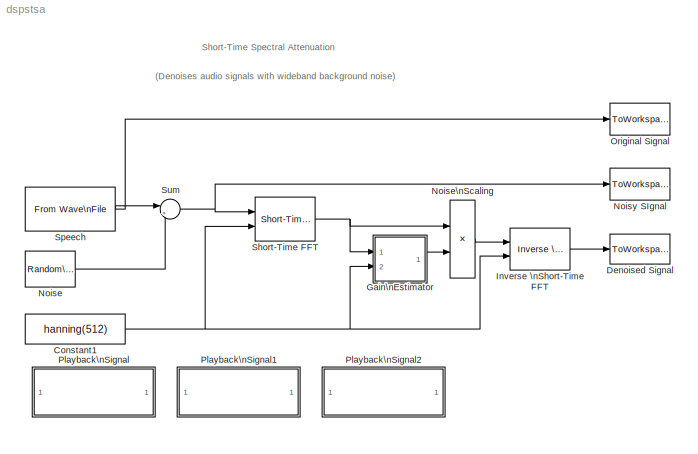
MODEL dspstsa
KIND model
BLOCK [Constant] Constant1
  Value = hanning(512)
BLOCK [ToWorkspace] Denoised Signal
  MaxDataPoints = inf
  SampleTime = -1
  SaveFormat = Array
  VariableName = outSig
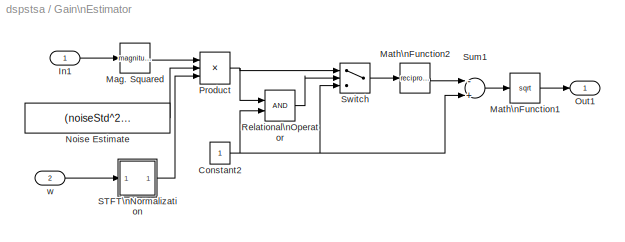
BLOCK [SubSystem] Gain\nEstimator
  MaskCallbackString = ||
  MaskDisplay = disp(sprintf('Gain\\n Estimator'))
  MaskEnableString = on,on,on
  MaskIconFrame = on
  MaskIconOpaque = on
  MaskIconRotate = none
  MaskIconUnits = autoscale
  MaskPromptString = Noise Standard Deviation:|Decimation:|Weighting (alpha):
  MaskStyleString = edit,edit,edit
  MaskTabNameString = ,,
  MaskToolTipString = on,on,on
  MaskTunableValueString = on,on,on
  MaskType = Estimate Gain for Noise Suppression
  MaskValueString = 0.05|16|15
  MaskVarAliasString = ,,
  MaskVariables = noiseStd=@1;decimat=@2;alpha=@3;
  MaskVisibilityString = on,on,on
  MinAlgLoopOccurrences = off
  Ports = [2, 1]
  PropExecContextAcrossSSBoundary = on
  RTWSystemCode = Auto
  TreatAsAtomicUnit = off
BLOCK [Constant] Gain\nEstimator/Constant2
BLOCK [Inport] Gain\nEstimator/In1
  IconDisplay = Port number
  LatchInput = off
BLOCK [Math] Gain\nEstimator/Mag. Squared
  Operator = magnitude^2
  Ports = [1, 1]
BLOCK [Math] Gain\nEstimator/Math\nFunction1
  Operator = sqrt
  Ports = [1, 1]
BLOCK [Math] Gain\nEstimator/Math\nFunction2
  Operator = reciprocal
  Ports = [1, 1]
BLOCK [Constant] Gain\nEstimator/Noise Estimate
  Value = (noiseStd^2) *alpha
BLOCK [Outport] Gain\nEstimator/Out1
  BusOutputAsStruct = off
  IconDisplay = Port number
BLOCK [Product] Gain\nEstimator/Product
  Inputs = *//
  Ports = [3, 1]
  RndMeth = Floor
BLOCK [RelationalOperator] Gain\nEstimator/Relational\nOperator
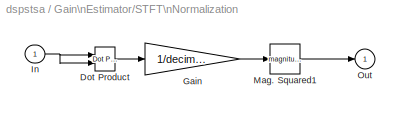
BLOCK [SubSystem] Gain\nEstimator/STFT\nNormalization
  MinAlgLoopOccurrences = off
  Ports = [1, 1]
  PropExecContextAcrossSSBoundary = on
  RTWSystemCode = Auto
  TreatAsAtomicUnit = off
BLOCK [Reference] Gain\nEstimator/STFT\nNormalization/Dot Product  REF=simulink/Math\nOperations/Dot Product
  DoSatur = off
  InputSameDT = off
  LockScale = off
  OutDataType = sfix(16)
  OutScaling = 2^-10
  OutputDataTypeScalingMode = Inherit via internal rule
  Ports = [2, 1]
  RndMeth = Floor
  SourceBlock = simulink/Math\nOperations/Dot Product
  SourceType = Dot Product
BLOCK [Gain] Gain\nEstimator/STFT\nNormalization/Gain
  Gain = 1/decimat
BLOCK [Inport] Gain\nEstimator/STFT\nNormalization/In
  IconDisplay = Port number
  LatchInput = off
BLOCK [Math] Gain\nEstimator/STFT\nNormalization/Mag. Squared1
  Operator = magnitude^2
  Ports = [1, 1]
BLOCK [Outport] Gain\nEstimator/STFT\nNormalization/Out
  BusOutputAsStruct = off
  IconDisplay = Port number
BLOCK [Sum] Gain\nEstimator/Sum1
  Inputs = -+
  Ports = [2, 1]
BLOCK [Switch] Gain\nEstimator/Switch
  Threshold = 0.5
BLOCK [Inport] Gain\nEstimator/w
  IconDisplay = Port number
  LatchInput = off
  Port = 2
BLOCK [Reference] Inverse \nShort-Time FFT  REF=dspxfrm3/Inverse \nShort-Time FFT
  DoAssert = off
  InConjSymm = on
  OutFrameSize = 512
  OvLap = 512-16
  Ports = [2, 1]
  ShowPortLabels = on
  SourceBlock = dspxfrm3/Inverse \nShort-Time FFT
  SourceType = Inverse Short-Time FFT
  Tol = 1e-4
  W = 512
BLOCK [Reference] Noise  REF=dspsrcs4/Random\nSource
  CltLength = 12
  DataType = Double
  Diagnostics = AllowInheritedTsInSrc
  Inherit = off
  Max = 1
  Mean = 0
  Min = 0
  NormMethod = Ziggurat
  OutComplex = Real
  Ports = [0, 1]
  RepMode = Not repeatable
  SampFrame = 512
  SampMode = Discrete
  SampTime = 1/22050
  SourceBlock = dspsrcs4/Random\nSource
  SourceType = Random Source
  SrcType = Gaussian
  UserData = DataTag0
  UserDataPersistent = on
  Var = (0.05)^2
  rawSeed = 1
BLOCK [Product] Noise\nScaling
  Ports = [2, 1]
  RndMeth = Floor
  SaturateOnIntegerOverflow = off
BLOCK [ToWorkspace] Noisy SIgnal
  MaxDataPoints = inf
  SampleTime = -1
  SaveFormat = Array
  VariableName = noisySig
BLOCK [ToWorkspace] Original Signal
  MaxDataPoints = inf
  SampleTime = -1
  SaveFormat = Array
  VariableName = originalSig
BLOCK [SubSystem] Playback\nSignal
  MaskDisplay = disp('Playback\\nOriginal Signal')
  MaskIconFrame = on
  MaskIconOpaque = on
  MaskIconRotate = none
  MaskIconUnits = autoscale
  MaskType = Original Signal
  MinAlgLoopOccurrences = off
  OpenFcn = [y,Fs]=wavread('speech_dft.wav');\np=audioplayer(y,Fs);             \nplay(p)
  Ports = []
  PropExecContextAcrossSSBoundary = on
  RTWSystemCode = Auto
  TreatAsAtomicUnit = off
BLOCK [SubSystem] Playback\nSignal1
  MaskDisplay = disp('Playback\\nNoisy Signal')
  MaskIconFrame = on
  MaskIconOpaque = on
  MaskIconRotate = none
  MaskIconUnits = autoscale
  MaskType = Original Signal
  MinAlgLoopOccurrences = off
  OpenFcn = if exist('noisySig','var'),                             \n   pNois=audioplayer(noisySig,22050);                   \n  play(pNois)                                           \nelse                                                    \n   errordlg('Run model before playing.', ...            \n               'Signal Processing Blockset Demo Error');\nend                                                 ...<+6ch>
  Ports = []
  PropExecContextAcrossSSBoundary = on
  RTWSystemCode = Auto
  TreatAsAtomicUnit = off
BLOCK [SubSystem] Playback\nSignal2
  MaskDisplay = disp('Playback\\nDenoised Signal')
  MaskIconFrame = on
  MaskIconOpaque = on
  MaskIconRotate = none
  MaskIconUnits = autoscale
  MaskType = Original Signal
  MinAlgLoopOccurrences = off
  OpenFcn = if exist('outSig','var'),                               \n   pDeNois=audioplayer(outSig,22050);                   \n   play(pDeNois)                                        \nelse                                                    \n   errordlg('Run model before playing.', ...            \n               'Signal Processing Blockset Demo Error');\nend                                                 ...<+6ch>
  Ports = []
  PropExecContextAcrossSSBoundary = on
  RTWSystemCode = Auto
  TreatAsAtomicUnit = off
BLOCK [Reference] Short-Time FFT  REF=dspxfrm3/Short-Time FFT
  M = 1024
  OvLap = 512-16
  Ports = [2, 1]
  ShowPortLabels = on
  SourceBlock = dspxfrm3/Short-Time FFT
  SourceType = Short-Time FFT
  W = 512
BLOCK [Reference] Speech  REF=dspwin32/From Wave\nFile
  FileName = speech_dft.wav
  MinBufSize = 512
  Ports = [0, 1]
  SamplesPerFrame = 512
  SourceBlock = dspwin32/From Wave\nFile
  SourceType = From Wave File
  bLoop = off
  dType = double
  firstSampleOutput = off
  lastSampleOutput = off
  restartMode = immediately after last sample
  timesToPlay = 1
BLOCK [Sum] Sum
  IconShape = round
  Inputs = |++
  Ports = [2, 1]
ANNOTATION (root): (Denoises audio signals with wideband background noise)
ANNOTATION (root): Short-Time Spectral Attenuation
NET Constant1:1 -> Gain\nEstimator:2, Inverse \nShort-Time FFT:2, Short-Time FFT:2
NET Gain\nEstimator/Constant2:1 -> Gain\nEstimator/Relational\nOperator:2, Gain\nEstimator/Sum1:2, Gain\nEstimator/Switch:3
LINE Gain\nEstimator/In1:1 -> Gain\nEstimator/Mag. Squared:1
LINE Gain\nEstimator/Mag. Squared:1 -> Gain\nEstimator/Product:1
LINE Gain\nEstimator/Math\nFunction1:1 -> Gain\nEstimator/Out1:1
LINE Gain\nEstimator/Math\nFunction2:1 -> Gain\nEstimator/Sum1:1
LINE Gain\nEstimator/Noise Estimate:1 -> Gain\nEstimator/Product:2
NET Gain\nEstimator/Product:1 -> Gain\nEstimator/Relational\nOperator:1, Gain\nEstimator/Switch:1
LINE Gain\nEstimator/Relational\nOperator:1 -> Gain\nEstimator/Switch:2
LINE Gain\nEstimator/STFT\nNormalization/Dot Product:1 -> Gain\nEstimator/STFT\nNormalization/Gain:1
LINE Gain\nEstimator/STFT\nNormalization/Gain:1 -> Gain\nEstimator/STFT\nNormalization/Mag. Squared1:1
NET Gain\nEstimator/STFT\nNormalization/In:1 -> Gain\nEstimator/STFT\nNormalization/Dot Product:1, Gain\nEstimator/STFT\nNormalization/Dot Product:2
LINE Gain\nEstimator/STFT\nNormalization/Mag. Squared1:1 -> Gain\nEstimator/STFT\nNormalization/Out:1
LINE Gain\nEstimator/STFT\nNormalization:1 -> Gain\nEstimator/Product:3
LINE Gain\nEstimator/Sum1:1 -> Gain\nEstimator/Math\nFunction1:1
LINE Gain\nEstimator/Switch:1 -> Gain\nEstimator/Math\nFunction2:1
LINE Gain\nEstimator/w:1 -> Gain\nEstimator/STFT\nNormalization:1
LINE Gain\nEstimator:1 -> Noise\nScaling:2
LINE Inverse \nShort-Time FFT:1 -> Denoised Signal:1
LINE Noise:1 -> Sum:2
LINE Noise\nScaling:1 -> Inverse \nShort-Time FFT:1
NET Short-Time FFT:1 -> Gain\nEstimator:1, Noise\nScaling:1
NET Speech:1 -> Original Signal:1, Sum:1
NET Sum:1 -> Noisy SIgnal:1, Short-Time FFT:1
note: NET lines group one-source signal fan-out (src -> all destinations, sorted); 1:1 wires keep LINE
